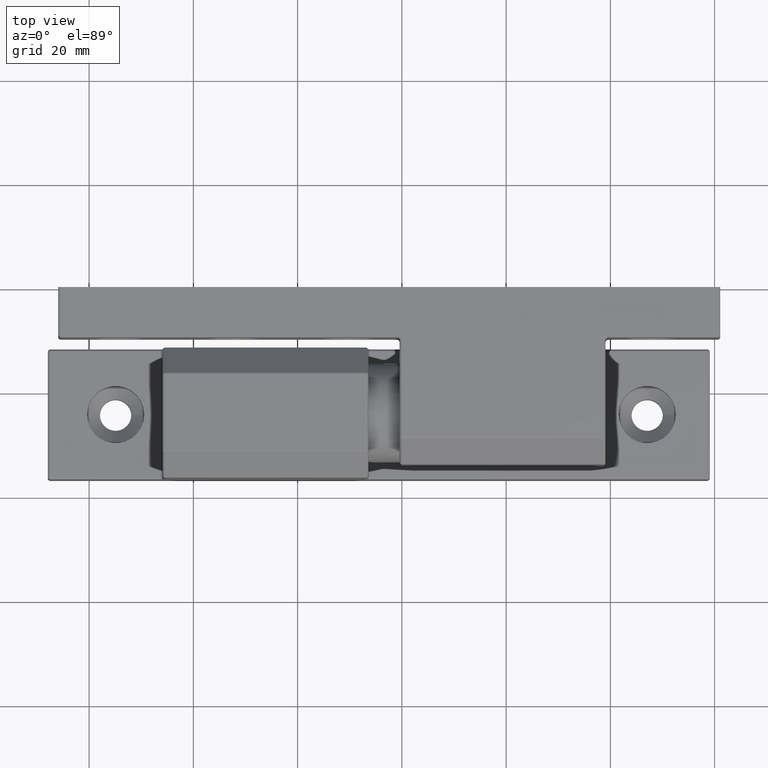
[diagram: clean part render]
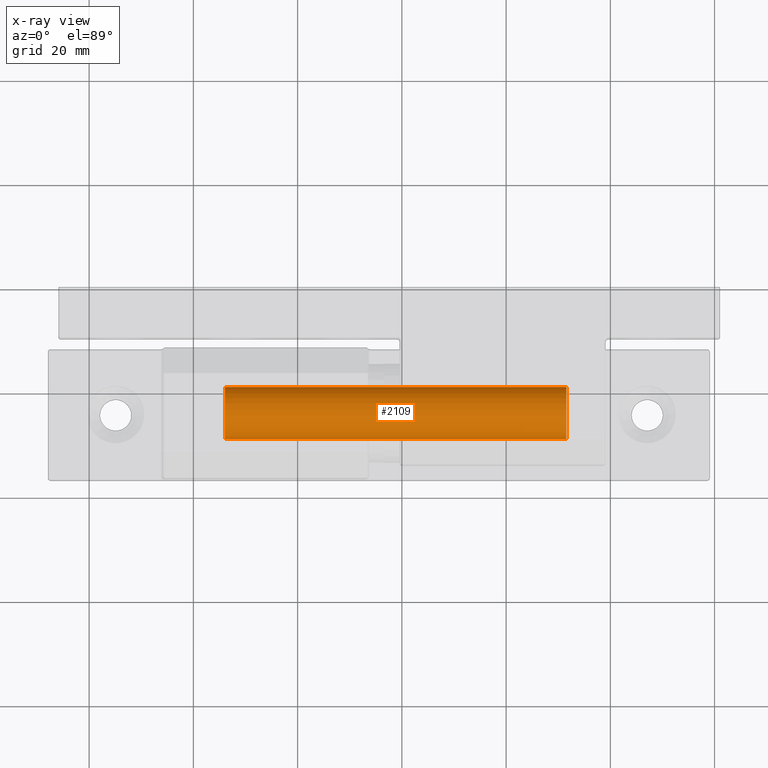
[diagram: x-ray — body ghosted, one internal face saturated and labeled with its STEP entity id]
A machine part, top view, then the same camera in x-ray: the body is ghosted and one INTERNAL B-rep face — a face not visible from any outside direction — is saturated and labeled: STEP entity #2109.
In plain terms, the highlighted cylindrical surface (bore or boss wall) has radius 5 mm, axis along (1, -0, -0).
Its self-contained STEP definition (entity closure, byte-faithful):
#102=FACE_BOUND('',#791,.T.);
#442=CYLINDRICAL_SURFACE('',#2424,5.);
#588=FACE_OUTER_BOUND('',#790,.T.);
#790=EDGE_LOOP('',(#1934));
#791=EDGE_LOOP('',(#1935));
#953=CIRCLE('',#2423,5.);
#954=CIRCLE('',#2425,5.);
#1121=VERTEX_POINT('',#3760);
#1122=VERTEX_POINT('',#3763);
#1393=EDGE_CURVE('',#1121,#1121,#953,.T.);
#1394=EDGE_CURVE('',#1122,#1122,#954,.T.);
#1934=ORIENTED_EDGE('',*,*,#1394,.F.);
#1935=ORIENTED_EDGE('',*,*,#1393,.F.);
#2109=ADVANCED_FACE('',(#588,#102),#442,.T.);
#2423=AXIS2_PLACEMENT_3D('',#3761,#3156,#3157);
#2424=AXIS2_PLACEMENT_3D('',#3762,#3158,#3159);
#2425=AXIS2_PLACEMENT_3D('',#3764,#3160,#3161);
#3156=DIRECTION('center_axis',(-1.,0.,0.));
#3157=DIRECTION('ref_axis',(0.,-1.,0.));
#3158=DIRECTION('center_axis',(1.,0.,0.));
#3159=DIRECTION('ref_axis',(0.,1.,0.));
#3160=DIRECTION('center_axis',(1.,0.,0.));
#3161=DIRECTION('ref_axis',(0.,-1.,0.));
#3760=CARTESIAN_POINT('',(1.5,5.,-6.12323399573677E-16));
#3761=CARTESIAN_POINT('Origin',(1.5,0.,0.));
#3762=CARTESIAN_POINT('Origin',(34.25,0.,0.));
#3763=CARTESIAN_POINT('',(67.,5.,6.12323399573677E-16));
#3764=CARTESIAN_POINT('Origin',(67.,0.,0.));